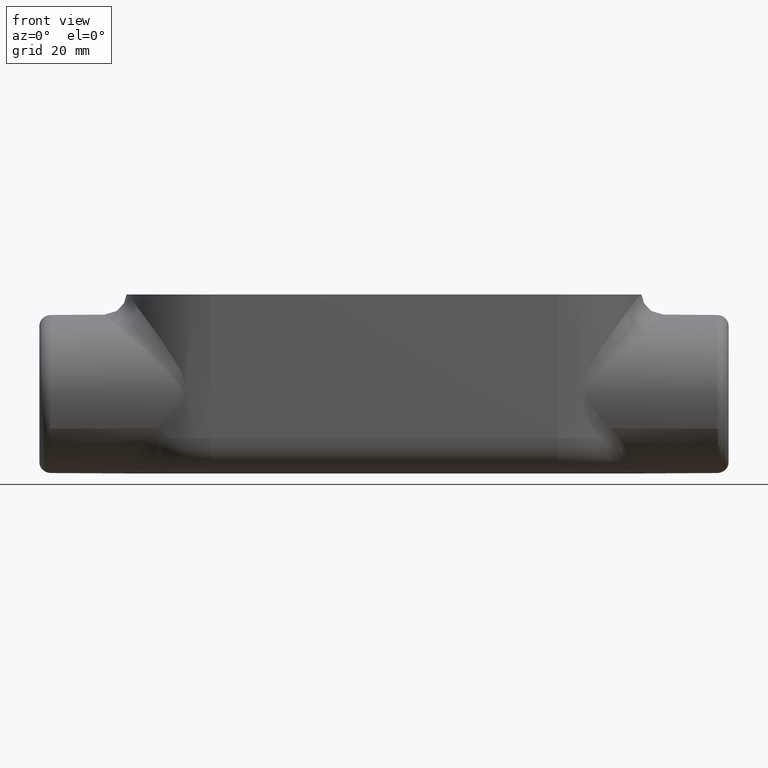
[diagram: clean part render]
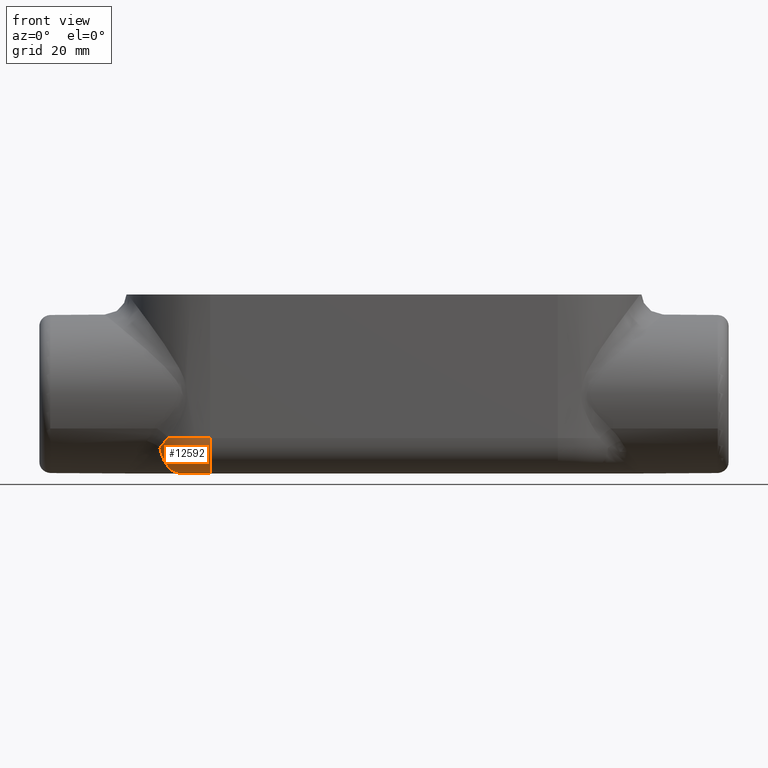
[diagram: same view with one face highlighted and labeled with its STEP entity id]
A machine part, front view. The second image highlights one B-rep face of the part: STEP entity #12592.
In plain terms, the highlighted toroidal blend (fillet) surface has major radius 13.462 mm and minor (blend) radius 9.906 mm.
Its self-contained STEP definition (entity closure, byte-faithful):
#421=TOROIDAL_SURFACE('',#13303,0.53,0.39);
#2899=B_SPLINE_CURVE_WITH_KNOTS('',3,(#16690,#16691,#16692,#16693),
 .UNSPECIFIED.,.F.,.F.,(4,4),(-0.595082738363513,-1.27554957784469E-14),
 .UNSPECIFIED.);
#4358=FACE_OUTER_BOUND('',#5046,.T.);
#5046=EDGE_LOOP('',(#8966,#8967,#8968,#8969,#8970));
#5819=CIRCLE('',#13301,0.92);
#5821=CIRCLE('',#13304,0.39);
#5822=CIRCLE('',#13305,0.53);
#5823=CIRCLE('',#13306,0.39);
#5939=VERTEX_POINT('',#16387);
#5945=VERTEX_POINT('',#16633);
#5946=VERTEX_POINT('',#16699);
#5948=VERTEX_POINT('',#16705);
#5949=VERTEX_POINT('',#16707);
#7151=EDGE_CURVE('',#5939,#5945,#2899,.T.);
#7153=EDGE_CURVE('',#5946,#5945,#5819,.T.);
#7156=EDGE_CURVE('',#5939,#5948,#5821,.T.);
#7157=EDGE_CURVE('',#5948,#5949,#5822,.T.);
#7158=EDGE_CURVE('',#5946,#5949,#5823,.T.);
#8966=ORIENTED_EDGE('',*,*,#7151,.F.);
#8967=ORIENTED_EDGE('',*,*,#7156,.T.);
#8968=ORIENTED_EDGE('',*,*,#7157,.T.);
#8969=ORIENTED_EDGE('',*,*,#7158,.F.);
#8970=ORIENTED_EDGE('',*,*,#7153,.T.);
#12592=ADVANCED_FACE('',(#4358),#421,.T.);
#13301=AXIS2_PLACEMENT_3D('',#16700,#13891,#13892);
#13303=AXIS2_PLACEMENT_3D('',#16704,#13896,#13897);
#13304=AXIS2_PLACEMENT_3D('',#16706,#13898,#13899);
#13305=AXIS2_PLACEMENT_3D('',#16708,#13900,#13901);
#13306=AXIS2_PLACEMENT_3D('',#16709,#13902,#13903);
#13891=DIRECTION('center_axis',(0.,0.,-1.));
#13892=DIRECTION('ref_axis',(-0.707106781186547,-0.707106781186547,0.));
#13896=DIRECTION('center_axis',(0.,0.,-1.));
#13897=DIRECTION('ref_axis',(-1.,0.,0.));
#13898=DIRECTION('center_axis',(0.791614845914484,-0.611020405328486,0.));
#13899=DIRECTION('ref_axis',(-0.611020405328486,-0.791614845914484,4.48303260498751E-16));
#13900=DIRECTION('center_axis',(0.,0.,1.));
#13901=DIRECTION('ref_axis',(-0.707106781186548,-0.707106781186548,0.));
#13902=DIRECTION('center_axis',(1.,0.,0.));
#13903=DIRECTION('ref_axis',(0.,-1.,0.));
#16387=CARTESIAN_POINT('',(-2.46775345603076,-0.716126397921599,-0.703373999078767));
#16633=CARTESIAN_POINT('',(-2.37581972146993,-0.796269542494487,-0.595000000000016));
#16690=CARTESIAN_POINT('Ctrl Pts',(-2.46775345603076,-0.716126397921598,
-0.703373999078767));
#16691=CARTESIAN_POINT('Ctrl Pts',(-2.44352677733783,-0.748111673454126,
-0.667017519389025));
#16692=CARTESIAN_POINT('Ctrl Pts',(-2.41303327865111,-0.774733190618689,
-0.629798048198306));
#16693=CARTESIAN_POINT('Ctrl Pts',(-2.37581972146993,-0.796269542494488,
-0.595000000000019));
#16699=CARTESIAN_POINT('',(-1.915,-0.92,-0.595));
#16700=CARTESIAN_POINT('Origin',(-1.915,0.,-0.595));
#16704=CARTESIAN_POINT('Origin',(-1.915,0.,-0.595));
#16705=CARTESIAN_POINT('',(-2.2388408148241,-0.419555868334676,-0.985));
#16706=CARTESIAN_POINT('Origin',(-2.2388408148241,-0.419555868334676,-0.595));
#16707=CARTESIAN_POINT('',(-1.915,-0.53,-0.985));
#16708=CARTESIAN_POINT('Origin',(-1.915,0.,-0.985));
#16709=CARTESIAN_POINT('Origin',(-1.915,-0.53,-0.595));